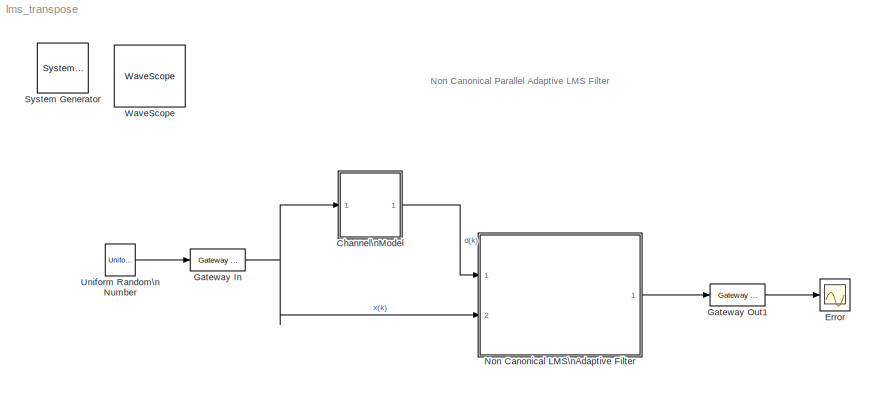
MODEL lms_transpose
KIND model
BLOCK [Reference]  System Generator  REF=xbsIndex_r4/ System Generator
  AttributesFormatString = System\\nGenerator
  FunctionWithSeparateData = off
  Ports = []
  RTWMemSecDataConstants = Inherit from model
  RTWMemSecDataInternal = Inherit from model
  RTWMemSecDataParameters = Inherit from model
  RTWMemSecFuncExecute = Inherit from model
  RTWMemSecFuncInitTerm = Inherit from model
  ShowPortLabels = FromPortIcon
  SourceBlock = xbsIndex_r4/ System Generator
  SourceType = Xilinx System Generator Block
  SystemSampleTime = -1
  Tag = genX
  UserData = DataTag0
  UserDataPersistent = on
  block_type = sysgen
  block_version = 8.2
  clock_wrapper = Clock Enables
  core_generation = According to Block Masks
  dbl_ovrd = No Where in SubSystem
  dcm_input_clock_period = 100
  deprecated_control = off
  directory = ./lms_transpose_netlist
  eval_field = 0
  has_advanced_control = 0
  incr_netlist = off
  infoedit = System Generator
  package = ff896
  part = xc2vp30
  run_coregen = off
  sg_blockgui_xml = <!--  *  <copyright redacted>\n <icon width=\"51\" bg_color=\"beige\" height=\"50\" capti...<+2851ch>
  sg_icon_stat = 51,50,-1,-1,red,beige,0,07734
  sg_mask_display = fprintf('','COMMENT: begin icon graphics');\npatch([0 51 51 0 ],[0 0 50 50 ],[0.93 0.92 0.86]);\npatch([12 4 16 4 12 25 29 33 47 36 25 17 29 17 25 36 47 33 29 25 12 ],[5 13 25 37 45 45 41 45 45 34 45 37 25 13 5 16 5 5 9 5 5 ],[0.6 0.2 0.25]);\nplot([0 0 51 51 0 ],[0 50 50 0 0 ]);\nfprintf('','COMMENT: end icon graphics');\nfprintf('','COMMENT: begin icon text');\nfprintf('','COMMENT: end icon text...<+5ch>
  sggui_pos = -1,-1,-1,-1
  simulink_period = 1/10e6
  speed = -7
  synthesis_tool = XST
  sysclk_period = 100
  testbench = off
  trim_vbits = Everywhere in SubSystem
  xilinxfamily = virtex2p
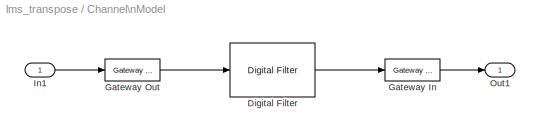
BLOCK [SubSystem] Channel\nModel
  FunctionWithSeparateData = off
  MaskHideContents = off
  MinAlgLoopOccurrences = off
  Ports = [1, 1]
  RTWSystemCode = Auto
BLOCK [Reference] Channel\nModel/Digital Filter  REF=dsparch4/Digital Filter
  AllPoleFiltStruct = Direct form
  BiQuadCoeffs = [1 0.3 0.4 1 0.1 0.2]
  CoeffSource = Specify via dialog
  DenCoeffs = [0.1 0.2 -0.4 0.3]
  DialogController = dspdialog.DigitalFilter
  DialogControllerArgs = DataTag1
  FIRFiltStruct = Direct form
  FiltPerSampPopup = One filter per frame
  FilterSource = Specify via dialog
  IC = 0
  ICden = 0
  ICnum = 0
  IIRFiltStruct = Direct form II transposed
  LatticeCoeffs = [0.2 0.4]
  LockScale = off
  NumCoeffs = [0.1 0.2 -0.4 0.3]
  Ports = [1, 1]
  ScaleValues = 1
  SourceBlock = dsparch4/Digital Filter
  SourceType = Digital Filter
  TypePopup = FIR (all zeros)
  accumFracLength = 30
  accumMode = Same as product output
  accumWordLength = 32
  additionalParams = off
  allowOverrides = on
  denIgnore = on
  dfiltObjectName = dfilt.dffir([1 2 1])
  firstCoeffFracLength = 15
  firstCoeffMode = Same word length as input
  firstCoeffWordLength = 16
  memoryFracLength = 15
  memoryMode = Same as accumulator
  memoryWordLength = 16
  multiplicandFracLength = 30
  multiplicandMode = Same as output
  multiplicandWordLength = 32
  outputFracLength = 15
  outputMode = Same as accumulator
  outputWordLength = 16
  overflowMode = off
  prodOutputFracLength = 30
  prodOutputMode = Same as input
  prodOutputWordLength = 32
  roundingMode = Floor
  scaleValueFracLength = 14
  secondCoeffFracLength = 15
  secondCoeffMode = Same as numerator
  secondCoeffWordLength = 16
  showAcc = off
  showCoeff = off
  showMem = off
  showMpy = off
  showOut = off
  stageIOMode = Same as input
  stageIOWordLength = 16
  stageInFracLength = 15
  stageOutFracLength = 15
  tapSumFracLength = 30
  tapSumMode = Same as input
  tapSumWordLength = 32
  thirdCoeffFracLength = 15
  thirdCoeffMode = Same as input
  thirdCoeffWordLength = 16
BLOCK [Reference] Channel\nModel/Gateway In  REF=xbsIndex_r4/Gateway In
  LOCs = {}
  Ports = [1, 1]
  SourceBlock = xbsIndex_r4/Gateway In
  SourceType = Xilinx Gateway In Block
  arith_type = Signed  (2's comp)
  bin_pt = 14
  block_type = gatewayin
  block_version = VER_STRING_GOES_HERE
  dbl_ovrd = off
  has_advanced_control = 0
  infoedit = Gateway in block.  Converts inputs of type Simulink integer, double and fixed point to  Xilinx fixed point type.<P><P>Hardware notes:  In hardware these blocks become top level input ports.
  locs_specified = off
  n_bits = 16
  overflow = Wrap
  period = 1/10e6
  quantization = Truncate
  sg_icon_stat = 55,22,1,1,white,yellow,0,bc55d28f,right
  sg_mask_display = fprintf('','COMMENT: begin icon graphics');\npatch([0 65 65 0 ],[0 0 20 20 ],[0.95 0.93 0.65]);\npatch([27 24 29 24 27 32 33 34 40 36 32 29 34 29 32 36 40 34 33 32 27 ],[2 5 10 15 18 18 17 18 18 14 18 15 10 5 2 6 2 2 3 2 2 ],[0.98 0.96 0.92]);\nplot([0 65 65 0 0 ],[0 0 20 20 0 ]);\nfprintf('','COMMENT: end icon graphics');\nfprintf('','COMMENT: begin icon text');\ncolor('black');port_label('input'...<+131ch>
  sggui_pos = -1,-1,-1,-1
  timing_constraint = None
  xl_area = [0, 0, 0, 0, 0, 0, 0]
  xl_use_area = off
BLOCK [Reference] Channel\nModel/Gateway Out  REF=xbsIndex_r4/Gateway Out
  LOCs = {}
  Ports = [1, 1]
  SourceBlock = xbsIndex_r4/Gateway Out
  SourceType = Xilinx Gateway Out Block
  block_type = gatewayout
  block_version = VER_STRING_GOES_HERE
  has_advanced_control = 0
  hdl_port = off
  infoedit = Gateway out block.  Converts Xilinx fixed point inputs into ouputs of type Simulink integer, double, or fixed point.<P><P>Hardware notes:  In hardware these blocks become top level output ports or are discarded, depending on how they are configured.  <repeated x6 — deduplicated; at blocks: Gateway Out, Gateway Out1, Gateway Out2, Gateway Out3, Gateway Out4, Gateway Out5>
  locs_specified = off
  sg_icon_stat = 55,22,1,1,white,grey,0,b3a044a9,right
  sg_mask_display = fprintf('','COMMENT: begin icon graphics');\npatch([0 55 55 0 ],[0 0 22 22 ],[0.88 0.88 0.88]);\npatch([22 18 23 18 22 28 30 32 38 33 28 25 31 25 28 33 38 32 30 28 22 ],[2 6 11 16 20 20 18 20 20 15 20 17 11 5 2 7 2 2 4 2 2 ],[0.98 0.96 0.92]);\nplot([0 55 55 0 0 ],[0 0 22 22 0 ]);\nfprintf('','COMMENT: end icon graphics');\nfprintf('','COMMENT: begin icon text');\ncolor('black');port_label('input'...<+128ch>  <repeated x5 — deduplicated; at blocks: Gateway Out, Gateway Out2, Gateway Out3, Gateway Out4, Gateway Out5>
  sggui_pos = -1,-1,-1,-1
  timing_constraint = None
  xl_area = [0, 0, 0, 0, 0, 0, 0]
  xl_use_area = off
BLOCK [Inport] Channel\nModel/In1
  IconDisplay = Port number
BLOCK [Outport] Channel\nModel/Out1
  BusOutputAsStruct = off
  IconDisplay = Port number
BLOCK [Scope] Error
  DataFormat = StructureWithTime
  Floating = off
  LimitDataPoints = off
  NumInputPorts = 1
  Ports = [1]
  SampleTime = 0
BLOCK [Reference] Gateway In  REF=xbsIndex_r4/Gateway In
  LOCs = {}
  Ports = [1, 1]
  SourceBlock = xbsIndex_r4/Gateway In
  SourceType = Xilinx Gateway In Block
  arith_type = Signed  (2's comp)
  bin_pt = 6
  block_type = gatewayin
  block_version = VER_STRING_GOES_HERE
  dbl_ovrd = off
  has_advanced_control = 0
  infoedit = Gateway in block.  Converts inputs of type Simulink integer, double and fixed point to  Xilinx fixed point type.<P><P>Hardware notes:  In hardware these blocks become top level input ports.
  locs_specified = off
  n_bits = 8
  overflow = Wrap
  period = 1/10e6
  quantization = Truncate
  sg_icon_stat = 55,22,1,1,white,yellow,0,bc55d28f,right
  sg_mask_display = fprintf('','COMMENT: begin icon graphics');\npatch([0 65 65 0 ],[0 0 20 20 ],[0.95 0.93 0.65]);\npatch([27 24 29 24 27 32 33 34 40 36 32 29 34 29 32 36 40 34 33 32 27 ],[2 5 10 15 18 18 17 18 18 14 18 15 10 5 2 6 2 2 3 2 2 ],[0.98 0.96 0.92]);\nplot([0 65 65 0 0 ],[0 0 20 20 0 ]);\nfprintf('','COMMENT: end icon graphics');\nfprintf('','COMMENT: begin icon text');\ncolor('black');port_label('input'...<+131ch>
  sggui_pos = 20,20,356,432
  timing_constraint = None
  xl_area = [0, 0, 0, 0, 0, 0, 0]
  xl_use_area = off
BLOCK [Reference] Gateway Out1  REF=xbsIndex_r4/Gateway Out
  LOCs = {}
  Ports = [1, 1]
  SourceBlock = xbsIndex_r4/Gateway Out
  SourceType = Xilinx Gateway Out Block
  block_type = gatewayout
  block_version = VER_STRING_GOES_HERE
  has_advanced_control = 0
  hdl_port = on
  locs_specified = off
  sg_icon_stat = 55,22,1,1,white,yellow,0,38220381,right
  sg_mask_display = fprintf('','COMMENT: begin icon graphics');\npatch([0 55 55 0 ],[0 0 22 22 ],[0.95 0.93 0.65]);\npatch([22 18 23 18 22 28 30 32 38 33 28 25 31 25 28 33 38 32 30 28 22 ],[2 6 11 16 20 20 18 20 20 15 20 17 11 5 2 7 2 2 4 2 2 ],[0.98 0.96 0.92]);\nplot([0 55 55 0 0 ],[0 0 22 22 0 ]);\nfprintf('','COMMENT: end icon graphics');\nfprintf('','COMMENT: begin icon text');\ncolor('black');port_label('input'...<+132ch>
  sggui_pos = -1,-1,-1,-1
  timing_constraint = None
  xl_area = [0, 0, 0, 0, 0, 0, 0]
  xl_use_area = off
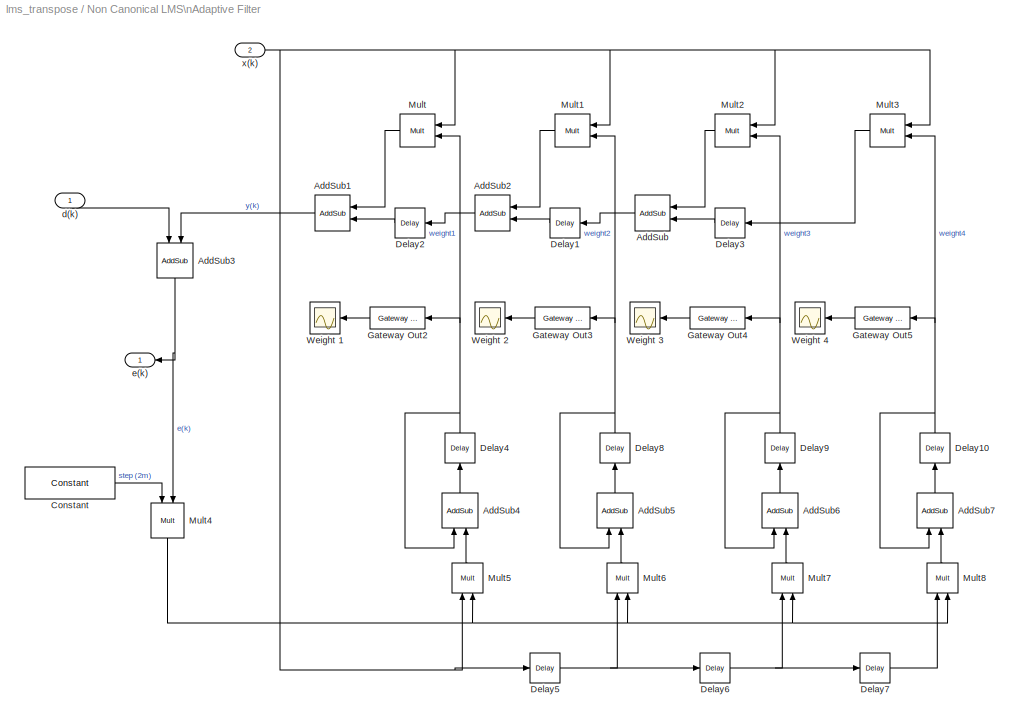
BLOCK [SubSystem] Non Canonical LMS\nAdaptive Filter
  FunctionWithSeparateData = off
  MaskHideContents = off
  MinAlgLoopOccurrences = off
  Ports = [2, 1]
  RTWSystemCode = Auto
BLOCK [Reference] Non Canonical LMS\nAdaptive Filter/AddSub  REF=xbsIndex_r4/AddSub
  Ports = [2, 1]
  SourceBlock = xbsIndex_r4/AddSub
  SourceType = Xilinx Adder/Subtractor Block
  arith_type = Signed  (2's comp)
  bin_pt = 14
  block_type = addsub
  block_version = VER_STRING_GOES_HERE
  dbl_ovrd = off
  en = off
  has_advanced_control = 0
  latency = 0
  mode = Addition
  n_bits = 16
  overflow = Wrap
  pipelined = off
  precision = User Defined
  quantization = Round  (unbiased: +/- Inf)
  sg_icon_stat = 35,36,1,1,white,blue,0,36a47907,left
  sg_mask_display = fprintf('','COMMENT: begin icon graphics');\npatch([0 60 60 0 ],[0 0 58 58 ],[0.77 0.82 0.91]);\npatch([15 5 19 5 15 30 34 38 54 41 29 20 34 20 29 41 54 38 34 30 15 ],[6 16 30 44 54 54 50 54 54 41 53 44 30 16 7 19 6 6 10 6 6 ],[0.98 0.96 0.92]);\nplot([0 60 60 0 0 ],[0 0 58 58 0 ]);\nfprintf('','COMMENT: end icon graphics');\nfprintf('','COMMENT: begin icon text');\ncolor('black');port_label('inpu...<+163ch>  <repeated x8 — deduplicated; at blocks: AddSub, AddSub1, AddSub2, AddSub3, AddSub4, AddSub5, AddSub6, AddSub7>
  sggui_pos = -1,-1,-1,-1
  use_behavioral_HDL = on
  use_carryin = off
  use_carryout = off
  use_rpm = on
  xl_area = [0, 0, 0, 0, 0, 0, 0]
  xl_use_area = off
BLOCK [Reference] Non Canonical LMS\nAdaptive Filter/AddSub1  REF=xbsIndex_r4/AddSub
  Ports = [2, 1]
  SourceBlock = xbsIndex_r4/AddSub
  SourceType = Xilinx Adder/Subtractor Block
  arith_type = Signed  (2's comp)
  bin_pt = 14
  block_type = addsub
  block_version = VER_STRING_GOES_HERE
  dbl_ovrd = off
  en = off
  has_advanced_control = 0
  latency = 0
  mode = Addition
  n_bits = 16
  overflow = Wrap
  pipelined = off
  precision = User Defined
  quantization = Round  (unbiased: +/- Inf)
  sg_icon_stat = 35,36,1,1,white,blue,0,36a47907,left
  sggui_pos = -1,-1,-1,-1
  use_behavioral_HDL = on
  use_carryin = off
  use_carryout = off
  use_rpm = on
  xl_area = [0, 0, 0, 0, 0, 0, 0]
  xl_use_area = off
BLOCK [Reference] Non Canonical LMS\nAdaptive Filter/AddSub2  REF=xbsIndex_r4/AddSub
  Ports = [2, 1]
  SourceBlock = xbsIndex_r4/AddSub
  SourceType = Xilinx Adder/Subtractor Block
  arith_type = Signed  (2's comp)
  bin_pt = 14
  block_type = addsub
  block_version = VER_STRING_GOES_HERE
  dbl_ovrd = off
  en = off
  has_advanced_control = 0
  latency = 0
  mode = Addition
  n_bits = 16
  overflow = Wrap
  pipelined = off
  precision = User Defined
  quantization = Round  (unbiased: +/- Inf)
  sg_icon_stat = 35,36,1,1,white,blue,0,36a47907,left
  sggui_pos = -1,-1,-1,-1
  use_behavioral_HDL = on
  use_carryin = off
  use_carryout = off
  use_rpm = on
  xl_area = [0, 0, 0, 0, 0, 0, 0]
  xl_use_area = off
BLOCK [Reference] Non Canonical LMS\nAdaptive Filter/AddSub3  REF=xbsIndex_r4/AddSub
  Ports = [2, 1]
  SourceBlock = xbsIndex_r4/AddSub
  SourceType = Xilinx Adder/Subtractor Block
  arith_type = Signed  (2's comp)
  bin_pt = 14
  block_type = addsub
  block_version = VER_STRING_GOES_HERE
  dbl_ovrd = off
  en = off
  has_advanced_control = 0
  latency = 0
  mode = Subtraction
  n_bits = 16
  overflow = Wrap
  pipelined = off
  precision = User Defined
  quantization = Truncate
  sg_icon_stat = 36,35,1,1,white,blue,0,46b4c804,down
  sggui_pos = -1,-1,-1,-1
  use_behavioral_HDL = on
  use_carryin = off
  use_carryout = off
  use_rpm = on
  xl_area = [0, 0, 0, 0, 0, 0, 0]
  xl_use_area = off
BLOCK [Reference] Non Canonical LMS\nAdaptive Filter/AddSub4  REF=xbsIndex_r4/AddSub
  Ports = [2, 1]
  SourceBlock = xbsIndex_r4/AddSub
  SourceType = Xilinx Adder/Subtractor Block
  arith_type = Signed  (2's comp)
  bin_pt = 14
  block_type = addsub
  block_version = VER_STRING_GOES_HERE
  dbl_ovrd = off
  en = off
  has_advanced_control = 0
  latency = 0
  mode = Addition
  n_bits = 16
  overflow = Wrap
  pipelined = off
  precision = User Defined
  quantization = Truncate
  sg_icon_stat = 36,35,1,1,white,blue,0,36a47907,up
  sggui_pos = -1,-1,-1,-1
  use_behavioral_HDL = on
  use_carryin = off
  use_carryout = off
  use_rpm = on
  xl_area = [0, 0, 0, 0, 0, 0, 0]
  xl_use_area = off
BLOCK [Reference] Non Canonical LMS\nAdaptive Filter/AddSub5  REF=xbsIndex_r4/AddSub
  Ports = [2, 1]
  SourceBlock = xbsIndex_r4/AddSub
  SourceType = Xilinx Adder/Subtractor Block
  arith_type = Signed  (2's comp)
  bin_pt = 14
  block_type = addsub
  block_version = VER_STRING_GOES_HERE
  dbl_ovrd = off
  en = off
  has_advanced_control = 0
  latency = 0
  mode = Addition
  n_bits = 16
  overflow = Wrap
  pipelined = off
  precision = User Defined
  quantization = Truncate
  sg_icon_stat = 36,35,1,1,white,blue,0,36a47907,up
  sggui_pos = -1,-1,-1,-1
  use_behavioral_HDL = on
  use_carryin = off
  use_carryout = off
  use_rpm = on
  xl_area = [0, 0, 0, 0, 0, 0, 0]
  xl_use_area = off
BLOCK [Reference] Non Canonical LMS\nAdaptive Filter/AddSub6  REF=xbsIndex_r4/AddSub
  Ports = [2, 1]
  SourceBlock = xbsIndex_r4/AddSub
  SourceType = Xilinx Adder/Subtractor Block
  arith_type = Signed  (2's comp)
  bin_pt = 14
  block_type = addsub
  block_version = VER_STRING_GOES_HERE
  dbl_ovrd = off
  en = off
  has_advanced_control = 0
  latency = 0
  mode = Addition
  n_bits = 16
  overflow = Wrap
  pipelined = off
  precision = User Defined
  quantization = Truncate
  sg_icon_stat = 36,35,1,1,white,blue,0,36a47907,up
  sggui_pos = -1,-1,-1,-1
  use_behavioral_HDL = on
  use_carryin = off
  use_carryout = off
  use_rpm = on
  xl_area = [0, 0, 0, 0, 0, 0, 0]
  xl_use_area = off
BLOCK [Reference] Non Canonical LMS\nAdaptive Filter/AddSub7  REF=xbsIndex_r4/AddSub
  Ports = [2, 1]
  SourceBlock = xbsIndex_r4/AddSub
  SourceType = Xilinx Adder/Subtractor Block
  arith_type = Signed  (2's comp)
  bin_pt = 14
  block_type = addsub
  block_version = VER_STRING_GOES_HERE
  dbl_ovrd = off
  en = off
  has_advanced_control = 0
  latency = 0
  mode = Addition
  n_bits = 16
  overflow = Wrap
  pipelined = off
  precision = User Defined
  quantization = Truncate
  sg_icon_stat = 36,35,1,1,white,blue,0,36a47907,up
  sggui_pos = -1,-1,-1,-1
  use_behavioral_HDL = on
  use_carryin = off
  use_carryout = off
  use_rpm = on
  xl_area = [0, 0, 0, 0, 0, 0, 0]
  xl_use_area = off
BLOCK [Reference] Non Canonical LMS\nAdaptive Filter/Constant  REF=xbsIndex_r4/Constant
  Ports = [0, 1]
  SourceBlock = xbsIndex_r4/Constant
  SourceType = Xilinx Constant Block Block
  arith_type = Signed (2's comp)
  bin_pt = 12
  block_type = constant
  block_version = VER_STRING_GOES_HERE
  carry = CIN
  const = 0.04
  dbl_ovrd = off
  dsp48_infoedit = The use of this block for DSP48 instructions is deprecated.  Please use the Opmode block.
  equ = P=C
  explicit_period = on
  has_advanced_control = 0
  inp1 = P
  inp2 = PCIN>>17
  n_bits = 14
  opr = +
  opselect = C
  period = 1/10e6
  sg_icon_stat = 90,32,1,1,white,blue,0,3ad218c7,right
  sg_mask_display = fprintf('','COMMENT: begin icon graphics');\npatch([0 55 55 0 ],[0 0 26 26 ],[0.77 0.82 0.91]);\npatch([20 16 22 16 20 27 29 31 38 32 26 22 28 22 26 32 38 31 29 27 20 ],[3 7 13 19 23 23 21 23 23 17 23 19 13 7 3 9 3 3 5 3 3 ],[0.98 0.96 0.92]);\nplot([0 55 55 0 0 ],[0 0 26 26 0 ]);\nfprintf('','COMMENT: end icon graphics');\nfprintf('','COMMENT: begin icon text');\ncolor('black');port_label('output...<+61ch>
  sggui_pos = -1,-1,-1,-1
BLOCK [Reference] Non Canonical LMS\nAdaptive Filter/Delay1  REF=xbsIndex_r4/Delay
  Ports = [1, 1]
  SourceBlock = xbsIndex_r4/Delay
  SourceType = Xilinx Delay Block
  block_type = delay
  block_version = VER_STRING_GOES_HERE
  dbl_ovrd = off
  en = off
  has_advanced_control = 0
  infoedit = Hardware notes: A delay line is a chain, each link of which is an SRL16 followed by a flip-flop. If register retiming is enabled, the delay line is a chain of flip-flops.
  latency = 1
  reg_retiming = on
  sg_icon_stat = 30,30,1,1,white,blue,0,fc531c0e,left
  sg_mask_display = fprintf('','COMMENT: begin icon graphics');\npatch([0 60 60 0 ],[0 0 56 56 ],[0.77 0.82 0.91]);\npatch([15 6 19 6 15 30 34 38 54 41 29 20 32 20 29 41 54 38 34 30 15 ],[6 15 28 41 50 50 46 50 50 37 49 40 28 16 7 19 6 6 10 6 6 ],[0.98 0.96 0.92]);\nplot([0 60 60 0 0 ],[0 0 56 56 0 ]);\nfprintf('','COMMENT: end icon graphics');\nfprintf('','COMMENT: begin icon text');\ncolor('black');disp('z^{-1}','t...<+55ch>  <repeated x10 — deduplicated; at blocks: Delay1, Delay10, Delay2, Delay3, Delay4, Delay5, Delay6, Delay7, Delay8, Delay9>
  sggui_pos = -1,-1,-1,-1
  xl_area = [0, 0, 0, 0, 0, 0, 0]
  xl_use_area = off
BLOCK [Reference] Non Canonical LMS\nAdaptive Filter/Delay10  REF=xbsIndex_r4/Delay
  Ports = [1, 1]
  SourceBlock = xbsIndex_r4/Delay
  SourceType = Xilinx Delay Block
  block_type = delay
  block_version = VER_STRING_GOES_HERE
  dbl_ovrd = off
  en = off
  has_advanced_control = 0
  infoedit = Hardware notes: A delay line is a chain, each link of which is an SRL16 followed by a flip-flop. If register retiming is enabled, the delay line is a chain of flip-flops.
  latency = 1
  reg_retiming = on
  sg_icon_stat = 30,30,1,1,white,blue,0,fc531c0e,up
  sggui_pos = -1,-1,-1,-1
  xl_area = [0, 0, 0, 0, 0, 0, 0]
  xl_use_area = off
BLOCK [Reference] Non Canonical LMS\nAdaptive Filter/Delay2  REF=xbsIndex_r4/Delay
  Ports = [1, 1]
  SourceBlock = xbsIndex_r4/Delay
  SourceType = Xilinx Delay Block
  block_type = delay
  block_version = VER_STRING_GOES_HERE
  dbl_ovrd = off
  en = off
  has_advanced_control = 0
  infoedit = Hardware notes: A delay line is a chain, each link of which is an SRL16 followed by a flip-flop. If register retiming is enabled, the delay line is a chain of flip-flops.
  latency = 1
  reg_retiming = on
  sg_icon_stat = 30,30,1,1,white,blue,0,fc531c0e,left
  sggui_pos = -1,-1,-1,-1
  xl_area = [0, 0, 0, 0, 0, 0, 0]
  xl_use_area = off
BLOCK [Reference] Non Canonical LMS\nAdaptive Filter/Delay3  REF=xbsIndex_r4/Delay
  Ports = [1, 1]
  SourceBlock = xbsIndex_r4/Delay
  SourceType = Xilinx Delay Block
  block_type = delay
  block_version = VER_STRING_GOES_HERE
  dbl_ovrd = off
  en = off
  has_advanced_control = 0
  infoedit = Hardware notes: A delay line is a chain, each link of which is an SRL16 followed by a flip-flop. If register retiming is enabled, the delay line is a chain of flip-flops.
  latency = 1
  reg_retiming = on
  sg_icon_stat = 30,30,1,1,white,blue,0,fc531c0e,left
  sggui_pos = -1,-1,-1,-1
  xl_area = [0, 0, 0, 0, 0, 0, 0]
  xl_use_area = off
BLOCK [Reference] Non Canonical LMS\nAdaptive Filter/Delay4  REF=xbsIndex_r4/Delay
  Ports = [1, 1]
  SourceBlock = xbsIndex_r4/Delay
  SourceType = Xilinx Delay Block
  block_type = delay
  block_version = VER_STRING_GOES_HERE
  dbl_ovrd = off
  en = off
  has_advanced_control = 0
  infoedit = Hardware notes: A delay line is a chain, each link of which is an SRL16 followed by a flip-flop. If register retiming is enabled, the delay line is a chain of flip-flops.
  latency = 1
  reg_retiming = on
  sg_icon_stat = 30,30,1,1,white,blue,0,fc531c0e,up
  sggui_pos = -1,-1,-1,-1
  xl_area = [0, 0, 0, 0, 0, 0, 0]
  xl_use_area = off
BLOCK [Reference] Non Canonical LMS\nAdaptive Filter/Delay5  REF=xbsIndex_r4/Delay
  Ports = [1, 1]
  SourceBlock = xbsIndex_r4/Delay
  SourceType = Xilinx Delay Block
  block_type = delay
  block_version = VER_STRING_GOES_HERE
  dbl_ovrd = off
  en = off
  has_advanced_control = 0
  infoedit = Hardware notes: A delay line is a chain, each link of which is an SRL16 followed by a flip-flop. If register retiming is enabled, the delay line is a chain of flip-flops.
  latency = 1
  reg_retiming = on
  sg_icon_stat = 30,30,1,1,white,blue,0,fc531c0e,right
  sggui_pos = -1,-1,-1,-1
  xl_area = [0, 0, 0, 0, 0, 0, 0]
  xl_use_area = off
BLOCK [Reference] Non Canonical LMS\nAdaptive Filter/Delay6  REF=xbsIndex_r4/Delay
  Ports = [1, 1]
  SourceBlock = xbsIndex_r4/Delay
  SourceType = Xilinx Delay Block
  block_type = delay
  block_version = VER_STRING_GOES_HERE
  dbl_ovrd = off
  en = off
  has_advanced_control = 0
  infoedit = Hardware notes: A delay line is a chain, each link of which is an SRL16 followed by a flip-flop. If register retiming is enabled, the delay line is a chain of flip-flops.
  latency = 1
  reg_retiming = on
  sg_icon_stat = 30,30,1,1,white,blue,0,fc531c0e,right
  sggui_pos = -1,-1,-1,-1
  xl_area = [0, 0, 0, 0, 0, 0, 0]
  xl_use_area = off
BLOCK [Reference] Non Canonical LMS\nAdaptive Filter/Delay7  REF=xbsIndex_r4/Delay
  Ports = [1, 1]
  SourceBlock = xbsIndex_r4/Delay
  SourceType = Xilinx Delay Block
  block_type = delay
  block_version = VER_STRING_GOES_HERE
  dbl_ovrd = off
  en = off
  has_advanced_control = 0
  infoedit = Hardware notes: A delay line is a chain, each link of which is an SRL16 followed by a flip-flop. If register retiming is enabled, the delay line is a chain of flip-flops.
  latency = 1
  reg_retiming = on
  sg_icon_stat = 30,30,1,1,white,blue,0,fc531c0e,right
  sggui_pos = -1,-1,-1,-1
  xl_area = [0, 0, 0, 0, 0, 0, 0]
  xl_use_area = off
BLOCK [Reference] Non Canonical LMS\nAdaptive Filter/Delay8  REF=xbsIndex_r4/Delay
  Ports = [1, 1]
  SourceBlock = xbsIndex_r4/Delay
  SourceType = Xilinx Delay Block
  block_type = delay
  block_version = VER_STRING_GOES_HERE
  dbl_ovrd = off
  en = off
  has_advanced_control = 0
  infoedit = Hardware notes: A delay line is a chain, each link of which is an SRL16 followed by a flip-flop. If register retiming is enabled, the delay line is a chain of flip-flops.
  latency = 1
  reg_retiming = on
  sg_icon_stat = 30,30,1,1,white,blue,0,fc531c0e,up
  sggui_pos = -1,-1,-1,-1
  xl_area = [0, 0, 0, 0, 0, 0, 0]
  xl_use_area = off
BLOCK [Reference] Non Canonical LMS\nAdaptive Filter/Delay9  REF=xbsIndex_r4/Delay
  Ports = [1, 1]
  SourceBlock = xbsIndex_r4/Delay
  SourceType = Xilinx Delay Block
  block_type = delay
  block_version = VER_STRING_GOES_HERE
  dbl_ovrd = off
  en = off
  has_advanced_control = 0
  infoedit = Hardware notes: A delay line is a chain, each link of which is an SRL16 followed by a flip-flop. If register retiming is enabled, the delay line is a chain of flip-flops.
  latency = 1
  reg_retiming = on
  sg_icon_stat = 30,30,1,1,white,blue,0,fc531c0e,up
  sggui_pos = -1,-1,-1,-1
  xl_area = [0, 0, 0, 0, 0, 0, 0]
  xl_use_area = off
BLOCK [Reference] Non Canonical LMS\nAdaptive Filter/Gateway Out2  REF=xbsIndex_r4/Gateway Out
  LOCs = {}
  Ports = [1, 1]
  SourceBlock = xbsIndex_r4/Gateway Out
  SourceType = Xilinx Gateway Out Block
  block_type = gatewayout
  block_version = VER_STRING_GOES_HERE
  has_advanced_control = 0
  hdl_port = off
  locs_specified = off
  sg_icon_stat = 55,22,1,1,white,grey,0,b3a044a9,left
  sggui_pos = -1,-1,-1,-1
  timing_constraint = None
  xl_area = [0, 0, 0, 0, 0, 0, 0]
  xl_use_area = off
BLOCK [Reference] Non Canonical LMS\nAdaptive Filter/Gateway Out3  REF=xbsIndex_r4/Gateway Out
  LOCs = {}
  Ports = [1, 1]
  SourceBlock = xbsIndex_r4/Gateway Out
  SourceType = Xilinx Gateway Out Block
  block_type = gatewayout
  block_version = VER_STRING_GOES_HERE
  has_advanced_control = 0
  hdl_port = off
  locs_specified = off
  sg_icon_stat = 55,22,1,1,white,grey,0,b3a044a9,left
  sggui_pos = -1,-1,-1,-1
  timing_constraint = None
  xl_area = [0, 0, 0, 0, 0, 0, 0]
  xl_use_area = off
BLOCK [Reference] Non Canonical LMS\nAdaptive Filter/Gateway Out4  REF=xbsIndex_r4/Gateway Out
  LOCs = {}
  Ports = [1, 1]
  SourceBlock = xbsIndex_r4/Gateway Out
  SourceType = Xilinx Gateway Out Block
  block_type = gatewayout
  block_version = VER_STRING_GOES_HERE
  has_advanced_control = 0
  hdl_port = off
  locs_specified = off
  sg_icon_stat = 55,22,1,1,white,grey,0,b3a044a9,left
  sggui_pos = -1,-1,-1,-1
  timing_constraint = None
  xl_area = [0, 0, 0, 0, 0, 0, 0]
  xl_use_area = off
BLOCK [Reference] Non Canonical LMS\nAdaptive Filter/Gateway Out5  REF=xbsIndex_r4/Gateway Out
  LOCs = {}
  Ports = [1, 1]
  SourceBlock = xbsIndex_r4/Gateway Out
  SourceType = Xilinx Gateway Out Block
  block_type = gatewayout
  block_version = VER_STRING_GOES_HERE
  has_advanced_control = 0
  hdl_port = off
  locs_specified = off
  sg_icon_stat = 55,22,1,1,white,grey,0,b3a044a9,left
  sggui_pos = -1,-1,-1,-1
  timing_constraint = None
  xl_area = [0, 0, 0, 0, 0, 0, 0]
  xl_use_area = off
BLOCK [Reference] Non Canonical LMS\nAdaptive Filter/Mult  REF=xbsIndex_r4/Mult
  Ports = [2, 1]
  SourceBlock = xbsIndex_r4/Mult
  SourceType = Xilinx Multiplier Block
  arith_type = Signed  (2's comp)
  bin_pt = 14
  block_type = mult
  block_version = VER_STRING_GOES_HERE
  dbl_ovrd = off
  en = off
  has_advanced_control = 0
  infoedit = Hardware notes: To use the internal pipeline stage of the dedicated multiplier you must select 'Pipeline for maximum performance'.
  latency = 0
  n_bits = 16
  opt = Speed
  optimum_pipeline = off
  overflow = Wrap
  pipeline = off
  placement_style = Rectangular shape
  precision = User Defined
  quantization = Round  (unbiased: +/- Inf)
  sg_icon_stat = 35,33,1,1,white,blue,0,dd5fccf4,left
  sg_mask_display = fprintf('','COMMENT: begin icon graphics');\npatch([0 55 55 0 ],[0 0 55 55 ],[0.77 0.82 0.91]);\npatch([13 4 17 4 13 28 32 36 52 40 28 19 32 19 28 40 52 36 32 28 13 ],[6 15 28 41 50 50 46 50 50 38 50 41 28 15 6 18 6 6 10 6 6 ],[0.98 0.96 0.92]);\nplot([0 55 55 0 0 ],[0 0 55 55 0 ]);\nfprintf('','COMMENT: end icon graphics');\nfprintf('','COMMENT: begin icon text');\ncolor('black');port_label('inpu...<+212ch>  <repeated x9 — deduplicated; at blocks: Mult, Mult1, Mult2, Mult3, Mult4, Mult5, Mult6, Mult7, Mult8>
  sggui_pos = -1,-1,-1,-1
  use_behavioral_HDL = off
  use_embedded = on
  use_rpm = on
  xl_area = [0, 0, 0, 0, 0, 0, 0]
  xl_use_area = off
BLOCK [Reference] Non Canonical LMS\nAdaptive Filter/Mult1  REF=xbsIndex_r4/Mult
  Ports = [2, 1]
  SourceBlock = xbsIndex_r4/Mult
  SourceType = Xilinx Multiplier Block
  arith_type = Signed  (2's comp)
  bin_pt = 14
  block_type = mult
  block_version = VER_STRING_GOES_HERE
  dbl_ovrd = off
  en = off
  has_advanced_control = 0
  infoedit = Hardware notes: To use the internal pipeline stage of the dedicated multiplier you must select 'Pipeline for maximum performance'.
  latency = 0
  n_bits = 16
  opt = Speed
  optimum_pipeline = off
  overflow = Wrap
  pipeline = off
  placement_style = Rectangular shape
  precision = User Defined
  quantization = Round  (unbiased: +/- Inf)
  sg_icon_stat = 35,33,1,1,white,blue,0,dd5fccf4,left
  sggui_pos = -1,-1,-1,-1
  use_behavioral_HDL = off
  use_embedded = on
  use_rpm = on
  xl_area = [0, 0, 0, 0, 0, 0, 0]
  xl_use_area = off
BLOCK [Reference] Non Canonical LMS\nAdaptive Filter/Mult2  REF=xbsIndex_r4/Mult
  Ports = [2, 1]
  SourceBlock = xbsIndex_r4/Mult
  SourceType = Xilinx Multiplier Block
  arith_type = Signed  (2's comp)
  bin_pt = 14
  block_type = mult
  block_version = VER_STRING_GOES_HERE
  dbl_ovrd = off
  en = off
  has_advanced_control = 0
  infoedit = Hardware notes: To use the internal pipeline stage of the dedicated multiplier you must select 'Pipeline for maximum performance'.
  latency = 0
  n_bits = 16
  opt = Speed
  optimum_pipeline = off
  overflow = Wrap
  pipeline = off
  placement_style = Rectangular shape
  precision = User Defined
  quantization = Round  (unbiased: +/- Inf)
  sg_icon_stat = 35,33,1,1,white,blue,0,dd5fccf4,left
  sggui_pos = -1,-1,-1,-1
  use_behavioral_HDL = off
  use_embedded = on
  use_rpm = on
  xl_area = [0, 0, 0, 0, 0, 0, 0]
  xl_use_area = off
BLOCK [Reference] Non Canonical LMS\nAdaptive Filter/Mult3  REF=xbsIndex_r4/Mult
  Ports = [2, 1]
  SourceBlock = xbsIndex_r4/Mult
  SourceType = Xilinx Multiplier Block
  arith_type = Signed  (2's comp)
  bin_pt = 14
  block_type = mult
  block_version = VER_STRING_GOES_HERE
  dbl_ovrd = off
  en = off
  has_advanced_control = 0
  infoedit = Hardware notes: To use the internal pipeline stage of the dedicated multiplier you must select 'Pipeline for maximum performance'.
  latency = 0
  n_bits = 16
  opt = Speed
  optimum_pipeline = off
  overflow = Wrap
  pipeline = off
  placement_style = Rectangular shape
  precision = User Defined
  quantization = Round  (unbiased: +/- Inf)
  sg_icon_stat = 35,33,1,1,white,blue,0,dd5fccf4,left
  sggui_pos = -1,-1,-1,-1
  use_behavioral_HDL = off
  use_embedded = on
  use_rpm = on
  xl_area = [0, 0, 0, 0, 0, 0, 0]
  xl_use_area = off
BLOCK [Reference] Non Canonical LMS\nAdaptive Filter/Mult4  REF=xbsIndex_r4/Mult
  Ports = [2, 1]
  SourceBlock = xbsIndex_r4/Mult
  SourceType = Xilinx Multiplier Block
  arith_type = Signed  (2's comp)
  bin_pt = 14
  block_type = mult
  block_version = VER_STRING_GOES_HERE
  dbl_ovrd = off
  en = off
  has_advanced_control = 0
  infoedit = Hardware notes: To use the internal pipeline stage of the dedicated multiplier you must select 'Pipeline for maximum performance'.
  latency = 0
  n_bits = 16
  opt = Speed
  optimum_pipeline = off
  overflow = Wrap
  pipeline = off
  placement_style = Rectangular shape
  precision = User Defined
  quantization = Round  (unbiased: +/- Inf)
  sg_icon_stat = 33,35,1,1,white,blue,0,dd5fccf4,down
  sggui_pos = -1,-1,-1,-1
  use_behavioral_HDL = off
  use_embedded = on
  use_rpm = on
  xl_area = [0, 0, 0, 0, 0, 0, 0]
  xl_use_area = off
BLOCK [Reference] Non Canonical LMS\nAdaptive Filter/Mult5  REF=xbsIndex_r4/Mult
  Ports = [2, 1]
  SourceBlock = xbsIndex_r4/Mult
  SourceType = Xilinx Multiplier Block
  arith_type = Signed  (2's comp)
  bin_pt = 14
  block_type = mult
  block_version = VER_STRING_GOES_HERE
  dbl_ovrd = off
  en = off
  has_advanced_control = 0
  infoedit = Hardware notes: To use the internal pipeline stage of the dedicated multiplier you must select 'Pipeline for maximum performance'.
  latency = 0
  n_bits = 16
  opt = Speed
  optimum_pipeline = off
  overflow = Wrap
  pipeline = off
  placement_style = Rectangular shape
  precision = User Defined
  quantization = Round  (unbiased: +/- Inf)
  sg_icon_stat = 31,30,1,1,white,blue,0,dd5fccf4,up
  sggui_pos = -1,-1,-1,-1
  use_behavioral_HDL = off
  use_embedded = on
  use_rpm = on
  xl_area = [0, 0, 0, 0, 0, 0, 0]
  xl_use_area = off
BLOCK [Reference] Non Canonical LMS\nAdaptive Filter/Mult6  REF=xbsIndex_r4/Mult
  Ports = [2, 1]
  SourceBlock = xbsIndex_r4/Mult
  SourceType = Xilinx Multiplier Block
  arith_type = Signed  (2's comp)
  bin_pt = 14
  block_type = mult
  block_version = VER_STRING_GOES_HERE
  dbl_ovrd = off
  en = off
  has_advanced_control = 0
  infoedit = Hardware notes: To use the internal pipeline stage of the dedicated multiplier you must select 'Pipeline for maximum performance'.
  latency = 0
  n_bits = 16
  opt = Speed
  optimum_pipeline = off
  overflow = Wrap
  pipeline = off
  placement_style = Rectangular shape
  precision = User Defined
  quantization = Truncate
  sg_icon_stat = 31,30,1,1,white,blue,0,dd5fccf4,up
  sggui_pos = -1,-1,-1,-1
  use_behavioral_HDL = off
  use_embedded = on
  use_rpm = on
  xl_area = [0, 0, 0, 0, 0, 0, 0]
  xl_use_area = off
BLOCK [Reference] Non Canonical LMS\nAdaptive Filter/Mult7  REF=xbsIndex_r4/Mult
  Ports = [2, 1]
  SourceBlock = xbsIndex_r4/Mult
  SourceType = Xilinx Multiplier Block
  arith_type = Signed  (2's comp)
  bin_pt = 14
  block_type = mult
  block_version = VER_STRING_GOES_HERE
  dbl_ovrd = off
  en = off
  has_advanced_control = 0
  infoedit = Hardware notes: To use the internal pipeline stage of the dedicated multiplier you must select 'Pipeline for maximum performance'.
  latency = 0
  n_bits = 16
  opt = Speed
  optimum_pipeline = off
  overflow = Wrap
  pipeline = off
  placement_style = Rectangular shape
  precision = User Defined
  quantization = Truncate
  sg_icon_stat = 31,30,1,1,white,blue,0,dd5fccf4,up
  sggui_pos = -1,-1,-1,-1
  use_behavioral_HDL = off
  use_embedded = on
  use_rpm = on
  xl_area = [0, 0, 0, 0, 0, 0, 0]
  xl_use_area = off
BLOCK [Reference] Non Canonical LMS\nAdaptive Filter/Mult8  REF=xbsIndex_r4/Mult
  Ports = [2, 1]
  SourceBlock = xbsIndex_r4/Mult
  SourceType = Xilinx Multiplier Block
  arith_type = Signed  (2's comp)
  bin_pt = 14
  block_type = mult
  block_version = VER_STRING_GOES_HERE
  dbl_ovrd = off
  en = off
  has_advanced_control = 0
  infoedit = Hardware notes: To use the internal pipeline stage of the dedicated multiplier you must select 'Pipeline for maximum performance'.
  latency = 0
  n_bits = 16
  opt = Speed
  optimum_pipeline = off
  overflow = Wrap
  pipeline = off
  placement_style = Rectangular shape
  precision = User Defined
  quantization = Round  (unbiased: +/- Inf)
  sg_icon_stat = 31,30,1,1,white,blue,0,dd5fccf4,up
  sggui_pos = -1,-1,-1,-1
  use_behavioral_HDL = off
  use_embedded = on
  use_rpm = on
  xl_area = [0, 0, 0, 0, 0, 0, 0]
  xl_use_area = off
BLOCK [Scope] Non Canonical LMS\nAdaptive Filter/Weight 1
  DataFormat = StructureWithTime
  Floating = off
  LimitDataPoints = off
  NumInputPorts = 1
  Ports = [1]
  SampleTime = 0
  SaveName = ScopeData1
BLOCK [Scope] Non Canonical LMS\nAdaptive Filter/Weight 2
  DataFormat = StructureWithTime
  Floating = off
  LimitDataPoints = off
  NumInputPorts = 1
  Ports = [1]
  SampleTime = 0
  SaveName = ScopeData2
BLOCK [Scope] Non Canonical LMS\nAdaptive Filter/Weight 3
  DataFormat = StructureWithTime
  Floating = off
  LimitDataPoints = off
  NumInputPorts = 1
  Ports = [1]
  SampleTime = 0
  SaveName = ScopeData3
BLOCK [Scope] Non Canonical LMS\nAdaptive Filter/Weight 4
  DataFormat = StructureWithTime
  Floating = off
  LimitDataPoints = off
  NumInputPorts = 1
  Ports = [1]
  SampleTime = 0
  SaveName = ScopeData4
BLOCK [Inport] Non Canonical LMS\nAdaptive Filter/d(k)
  IconDisplay = Port number
BLOCK [Outport] Non Canonical LMS\nAdaptive Filter/e(k)
  IconDisplay = Port number
BLOCK [Inport] Non Canonical LMS\nAdaptive Filter/x(k)
  IconDisplay = Port number
  Port = 2
BLOCK [UniformRandomNumber] Uniform Random\nNumber
  SampleTime = 1/10e6
BLOCK [Reference] WaveScope  REF=xbsIndex_r4/WaveScope
  Ports = []
  SourceBlock = xbsIndex_r4/WaveScope
  SourceType = WaveScope Block
  UserData = DataTag2
  UserDataPersistent = on
  block_type = wavescope
  block_version = 9.2.01
  has_advanced_control = 0
  infoedit = WaveScope
  sg_icon_stat = 0,0,-1,-1,white,blue,0,07734
  sggui_pos = -1,-1,-1,-1
ANNOTATION (root): Non Canonical Parallel Adaptive LMS Filter
LINE Channel\nModel/Digital Filter:1 -> Channel\nModel/Gateway In:1
LINE Channel\nModel/Gateway In:1 -> Channel\nModel/Out1:1
LINE Channel\nModel/Gateway Out:1 -> Channel\nModel/Digital Filter:1
LINE Channel\nModel/In1:1 -> Channel\nModel/Gateway Out:1
LINE Channel\nModel:1 -> Non Canonical LMS\nAdaptive Filter:1
NET Gateway In:1 -> Channel\nModel:1, Non Canonical LMS\nAdaptive Filter:2
LINE Gateway Out1:1 -> Error:1
LINE Non Canonical LMS\nAdaptive Filter/AddSub1:1 -> Non Canonical LMS\nAdaptive Filter/AddSub3:2
LINE Non Canonical LMS\nAdaptive Filter/AddSub2:1 -> Non Canonical LMS\nAdaptive Filter/Delay2:1
NET Non Canonical LMS\nAdaptive Filter/AddSub3:1 -> Non Canonical LMS\nAdaptive Filter/Mult4:2, Non Canonical LMS\nAdaptive Filter/e(k):1
LINE Non Canonical LMS\nAdaptive Filter/AddSub4:1 -> Non Canonical LMS\nAdaptive Filter/Delay4:1
LINE Non Canonical LMS\nAdaptive Filter/AddSub5:1 -> Non Canonical LMS\nAdaptive Filter/Delay8:1
LINE Non Canonical LMS\nAdaptive Filter/AddSub6:1 -> Non Canonical LMS\nAdaptive Filter/Delay9:1
LINE Non Canonical LMS\nAdaptive Filter/AddSub7:1 -> Non Canonical LMS\nAdaptive Filter/Delay10:1
LINE Non Canonical LMS\nAdaptive Filter/AddSub:1 -> Non Canonical LMS\nAdaptive Filter/Delay1:1
LINE Non Canonical LMS\nAdaptive Filter/Constant:1 -> Non Canonical LMS\nAdaptive Filter/Mult4:1
NET Non Canonical LMS\nAdaptive Filter/Delay10:1 -> Non Canonical LMS\nAdaptive Filter/AddSub7:1, Non Canonical LMS\nAdaptive Filter/Gateway Out5:1, Non Canonical LMS\nAdaptive Filter/Mult3:2
LINE Non Canonical LMS\nAdaptive Filter/Delay1:1 -> Non Canonical LMS\nAdaptive Filter/AddSub2:2
LINE Non Canonical LMS\nAdaptive Filter/Delay2:1 -> Non Canonical LMS\nAdaptive Filter/AddSub1:2
LINE Non Canonical LMS\nAdaptive Filter/Delay3:1 -> Non Canonical LMS\nAdaptive Filter/AddSub:2
NET Non Canonical LMS\nAdaptive Filter/Delay4:1 -> Non Canonical LMS\nAdaptive Filter/AddSub4:1, Non Canonical LMS\nAdaptive Filter/Gateway Out2:1, Non Canonical LMS\nAdaptive Filter/Mult:2
NET Non Canonical LMS\nAdaptive Filter/Delay5:1 -> Non Canonical LMS\nAdaptive Filter/Delay6:1, Non Canonical LMS\nAdaptive Filter/Mult6:1
NET Non Canonical LMS\nAdaptive Filter/Delay6:1 -> Non Canonical LMS\nAdaptive Filter/Delay7:1, Non Canonical LMS\nAdaptive Filter/Mult7:1
LINE Non Canonical LMS\nAdaptive Filter/Delay7:1 -> Non Canonical LMS\nAdaptive Filter/Mult8:1
NET Non Canonical LMS\nAdaptive Filter/Delay8:1 -> Non Canonical LMS\nAdaptive Filter/AddSub5:1, Non Canonical LMS\nAdaptive Filter/Gateway Out3:1, Non Canonical LMS\nAdaptive Filter/Mult1:2
NET Non Canonical LMS\nAdaptive Filter/Delay9:1 -> Non Canonical LMS\nAdaptive Filter/AddSub6:1, Non Canonical LMS\nAdaptive Filter/Gateway Out4:1, Non Canonical LMS\nAdaptive Filter/Mult2:2
LINE Non Canonical LMS\nAdaptive Filter/Gateway Out2:1 -> Non Canonical LMS\nAdaptive Filter/Weight 1:1
LINE Non Canonical LMS\nAdaptive Filter/Gateway Out3:1 -> Non Canonical LMS\nAdaptive Filter/Weight 2:1
LINE Non Canonical LMS\nAdaptive Filter/Gateway Out4:1 -> Non Canonical LMS\nAdaptive Filter/Weight 3:1
LINE Non Canonical LMS\nAdaptive Filter/Gateway Out5:1 -> Non Canonical LMS\nAdaptive Filter/Weight 4:1
LINE Non Canonical LMS\nAdaptive Filter/Mult1:1 -> Non Canonical LMS\nAdaptive Filter/AddSub2:1
LINE Non Canonical LMS\nAdaptive Filter/Mult2:1 -> Non Canonical LMS\nAdaptive Filter/AddSub:1
LINE Non Canonical LMS\nAdaptive Filter/Mult3:1 -> Non Canonical LMS\nAdaptive Filter/Delay3:1
NET Non Canonical LMS\nAdaptive Filter/Mult4:1 -> Non Canonical LMS\nAdaptive Filter/Mult5:2, Non Canonical LMS\nAdaptive Filter/Mult6:2, Non Canonical LMS\nAdaptive Filter/Mult7:2, Non Canonical LMS\nAdaptive Filter/Mult8:2
LINE Non Canonical LMS\nAdaptive Filter/Mult5:1 -> Non Canonical LMS\nAdaptive Filter/AddSub4:2
LINE Non Canonical LMS\nAdaptive Filter/Mult6:1 -> Non Canonical LMS\nAdaptive Filter/AddSub5:2
LINE Non Canonical LMS\nAdaptive Filter/Mult7:1 -> Non Canonical LMS\nAdaptive Filter/AddSub6:2
LINE Non Canonical LMS\nAdaptive Filter/Mult8:1 -> Non Canonical LMS\nAdaptive Filter/AddSub7:2
LINE Non Canonical LMS\nAdaptive Filter/Mult:1 -> Non Canonical LMS\nAdaptive Filter/AddSub1:1
LINE Non Canonical LMS\nAdaptive Filter/d(k):1 -> Non Canonical LMS\nAdaptive Filter/AddSub3:1
NET Non Canonical LMS\nAdaptive Filter/x(k):1 -> Non Canonical LMS\nAdaptive Filter/Delay5:1, Non Canonical LMS\nAdaptive Filter/Mult1:1, Non Canonical LMS\nAdaptive Filter/Mult2:1, Non Canonical LMS\nAdaptive Filter/Mult3:1, Non Canonical LMS\nAdaptive Filter/Mult5:1, Non Canonical LMS\nAdaptive Filter/Mult:1
LINE Non Canonical LMS\nAdaptive Filter:1 -> Gateway Out1:1
LINE Uniform Random\nNumber:1 -> Gateway In:1
note: NET lines group one-source signal fan-out (src -> all destinations, sorted); 1:1 wires keep LINE
